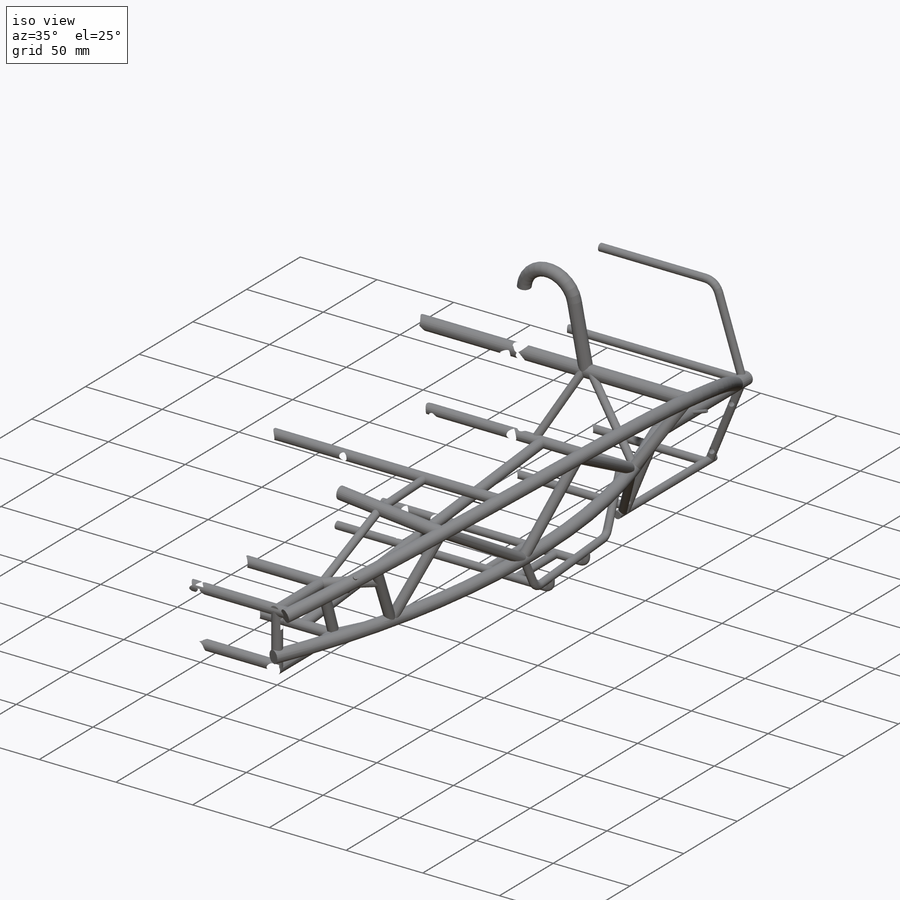
[diagram: iso view]
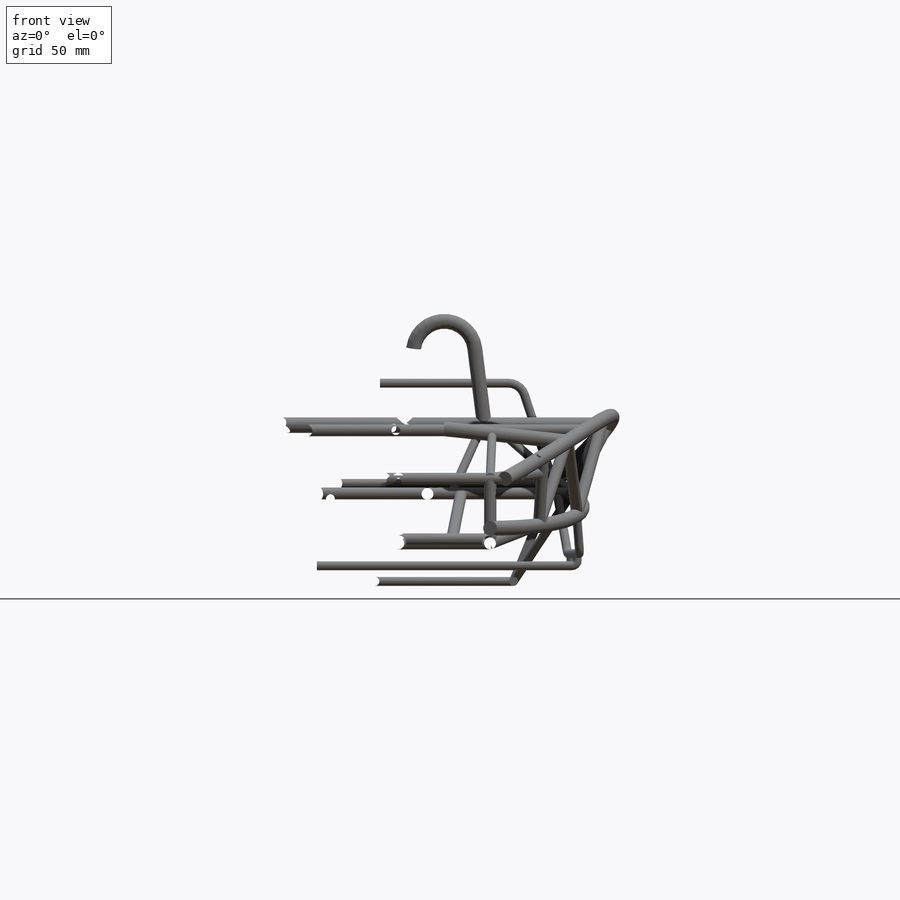
[diagram: front view]
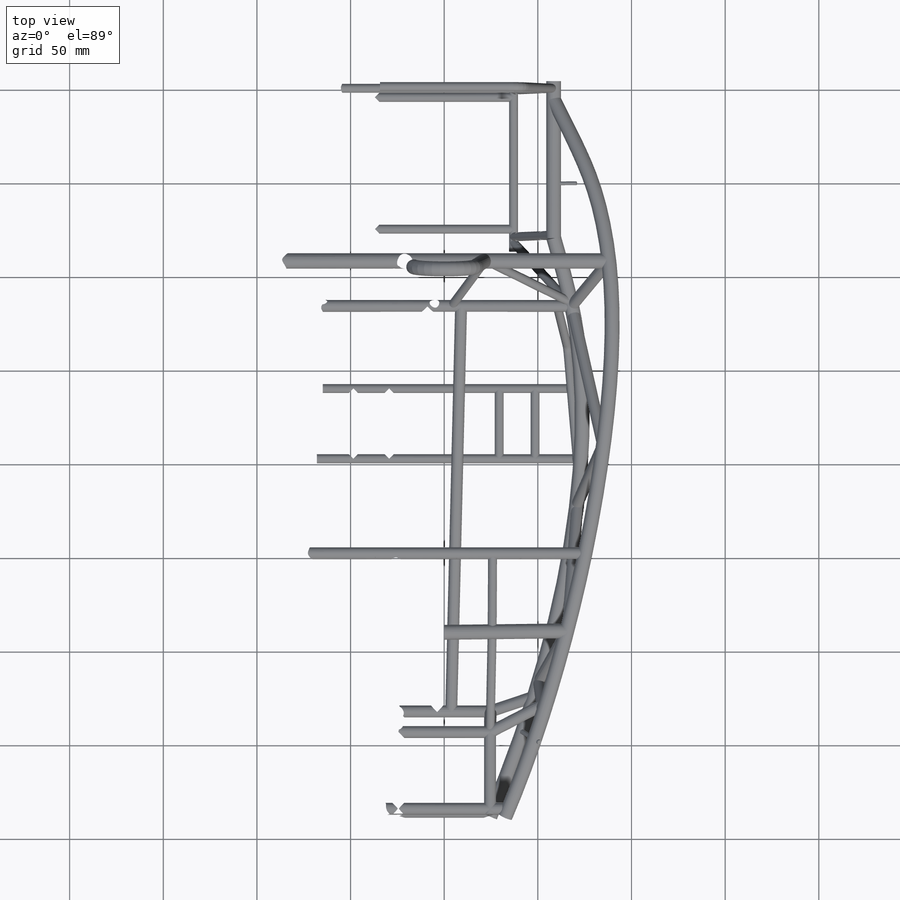
[diagram: top view]
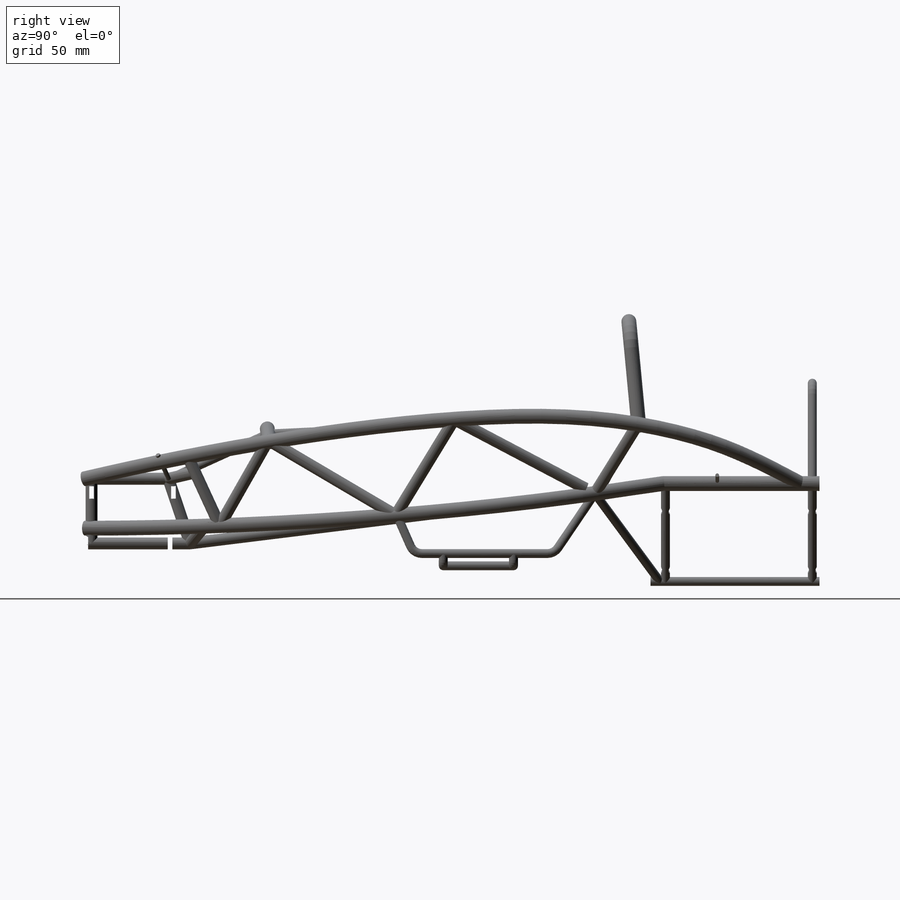
[diagram: right view]
SOLIDWORKS PART (.sldprt)
format: sldprt  version: not decoded by parser v0  size: 7,657,984 bytes
history: native  units: mm
features: sketch x74, sweep x23, extrude x19, plane x4, material x1, cut_extrude x1, mirror x1 (+11 scaffold rows collapsed)
feature tree (134):
  scaffold x11  (default folders/planes/origin — collapsed)
  material  "6061 Alloy"
  sketch  "Sketch1"  dims[D1=4.7625mm D2=37.0078mm D3=21.4122mm D4=52.2732mm]
  sketch  "Sketch2"  dims[D1=4.7625mm]
  sketch  "Sketch3"  dims[D1=4.7625mm D2=3.9116mm D3=74.295mm]
  extrude  "Boss-Extrude1"  Depth=86.36mm
  extrude  "Boss-Extrude2"  Depth=37.0078mm
  sketch  "Sketch4"  dims[D1=7.9375mm]
  extrude  "Boss-Extrude3"  Depth=80mm
  sketch  "Sketch5"  dims[D1=4.7625mm]
  extrude  "Boss-Extrude4"  Depth=58.74mm
  sketch  "3DSketch2"  dims[D3=~6.069605mm D4=4.7625mm D1=90.0deg D2=78.4098mm]
  sketch  "3DSketch3"  dims[D1=34.6964mm D2=81.3816mm]
  sketch  "3DSketch6"  dims[D1=4.7625mm]
  sweep  "Sweep7"
  sketch  "3DSketch7"  dims[D1=4.7625mm]
  sweep  "Sweep8"
  sketch  "Sketch10"  dims[D1=6.35mm]
  extrude  "Boss-Extrude5"  Depth=67mm
  sketch  "3DSketch4"  dims[D1=8.255mm]
  extrude  "Boss-Extrude6"  Depth=87.4014mm
  sketch  "Sketch11"  dims[D2=~18.096519mm D1=53.5686mm]
  sketch  "Sketch12"  dims[D1=4.7625mm]
  sweep  "Sweep5"
  sketch  "Sketch13"  dims[c1.D3=7.9375mm c1.D1=97.9424mm c1.D2=~162.01135mm c2.D1=97.9424mm c2.D2=138.8872mm]
  sketch  "3DSketch5"
  sweep  "Sweep6"
  sketch  "Sketch15"  dims[D1=467.36mm D2=260.35mm]
  sketch  "Sketch16"
  sketch  "3DSketch9"
  sketch  "3DSketch8"
  sketch  "3DSketch10"  dims[D1=7.9375mm D2=6.35mm]
  sketch  "3DSketch26"  dims[D1=7.9375mm]
  sweep  "Sweep26"
  sketch  "3DSketch11"
  sweep  "Sweep15"
  sketch  "3DSketch24"
  sketch  "3DSketch15"
  sketch  "Sketch17"  dims[D1=6.35mm]
  extrude  "Boss-Extrude7"  Depth=25mm
  sketch  "3DSketch16"  dims[D1=4.7625mm]
  sweep  "Sweep20"
  sketch  "3DSketch17"
  sketch  "3DSketch18"  dims[D1=6.35mm]
  sketch  "3DSketch19"  dims[D1=3.0mm]
  sketch  "3DSketch20"  dims[D1=4.7625mm]
  extrude  "Boss-Extrude8"  Depth=37.5mm
  sketch  "Sketch18"  dims[D1=4.7625mm]
  sweep  "Sweep21"
  sketch  "3DSketch22"  dims[D1=3.0mm]
  sketch  "Sketch21"  dims[D1=4.7625mm]
  sweep  "Sweep23"
  sketch  "3DSketch23"
  sketch  "3DSketch25"  dims[D1=4.7625mm]
  sweep  "Sweep24"
  sweep  "Sweep27"
  sketch  "3DSketch27"
  sketch  "3DSketch32"  dims[D1=6.35mm]
  sweep  "Sweep31"
  sketch  "3DSketch28"
  sketch  "3DSketch33"  dims[D1=6.35mm]
  sweep  "Sweep32"
  sketch  "3DSketch29"
  sketch  "3DSketch30"
  sketch  "3DSketch36"  dims[D1=6.35mm]
  sweep  "Sweep35"
  sketch  "3DSketch37"
  sketch  "3DSketch38"  dims[D1=6.35mm]
  sweep  "Sweep36"
  sketch  "3DSketch39"  dims[D1=6.35mm]
  sweep  "Sweep37"
  sketch  "Sketch22"  dims[D1=6.35mm D2=7.9375mm D3=7.9375mm]
  sketch  "Sketch24"
  extrude  "Boss-Extrude9"  Depth=75mm
  sketch  "3DSketch40"
  sweep  "Sweep38"
  sketch  "3DSketch42"
  sketch  "3DSketch43"
  sketch  "3DSketch44"
  sketch  "3DSketch46"
  sketch  "3DSketch47"  dims[D1=6.35mm]
  sweep  "Sweep41"
  sketch  "3DSketch48"  dims[D1=6.35mm]
  sweep  "Sweep42"
  sketch  "3DSketch49"
  sketch  "3DSketch50"  dims[D1=6.35mm]
  sweep  "Sweep43"
  sketch  "3DSketch52"
  sketch  "3DSketch53"
  sketch  "3DSketch54"  dims[D1=6.35mm]
  sweep  "Sweep46"
  sketch  "3DSketch55"  dims[D1=6.35mm]
  sweep  "Sweep47"
  sketch  "3DSketch56"
  sketch  "3DSketch57"  dims[D1=6.35mm]
  sweep  "Sweep48"
  sketch  "Sketch25"  dims[D1=3.5mm]
  cut_extrude  "Cut-Extrude1"  Depth=82mm
  sketch  "Sketch26"  dims[c1.D1=~11.637382mm c2.D1=20.0deg]
  sketch  "3DSketch58"  dims[D1=2.0mm]
  extrude  "Boss-Extrude10"  Depth=13mm
  sketch  "3DSketch60"  dims[D1=~1.162057mm]
  extrude  "Boss-Extrude11"  Depth=12mm
  sketch  "3DSketch62"  dims[D1=6.35mm]
  extrude  "Boss-Extrude12"  Depth=35mm
  sketch  "Sketch27"  dims[D1=6.35mm]
  extrude  "Boss-Extrude13"  Depth=33mm
  sketch  "3DSketch63"  dims[D1=4.7625mm]
  sketch  "3DSketch64"  dims[D1=4.7625mm]
  extrude  "Boss-Extrude14"  Depth=58mm
  extrude  "Boss-Extrude15"  Depth=42mm
  plane  "Plane1"
  plane  "Plane2"
  plane  "Plane3"  Offset=45mm
  plane  "Plane4"  Offset=45mm
  sketch  "Sketch28"  dims[D1=3.0mm D2=2.25mm D3=~8.148149mm]
  sketch  "Sketch29"  dims[D1=3.0mm]
  extrude  "Boss-Extrude16"  Depth=2.5mm
  extrude  "Boss-Extrude17"  Depth=2.5mm
  sketch  "Sketch30"  dims[D1=3.0mm D2=2.25mm]
  sketch  "Sketch31"  dims[D1=3.0mm]
  extrude  "Boss-Extrude18"  Depth=1.25mm
  extrude  "Boss-Extrude19"  Depth=2.5mm
  mirror  "Mirror10"
decode coverage: 70 of 118 modeling features carry decoded parameters
note: ~ marks probable driven/reference dimensions
summary: profile_refs inferred from adjacent sketches, not decoded
note: suppression state not decoded; provenance and decode notes live in map.json
